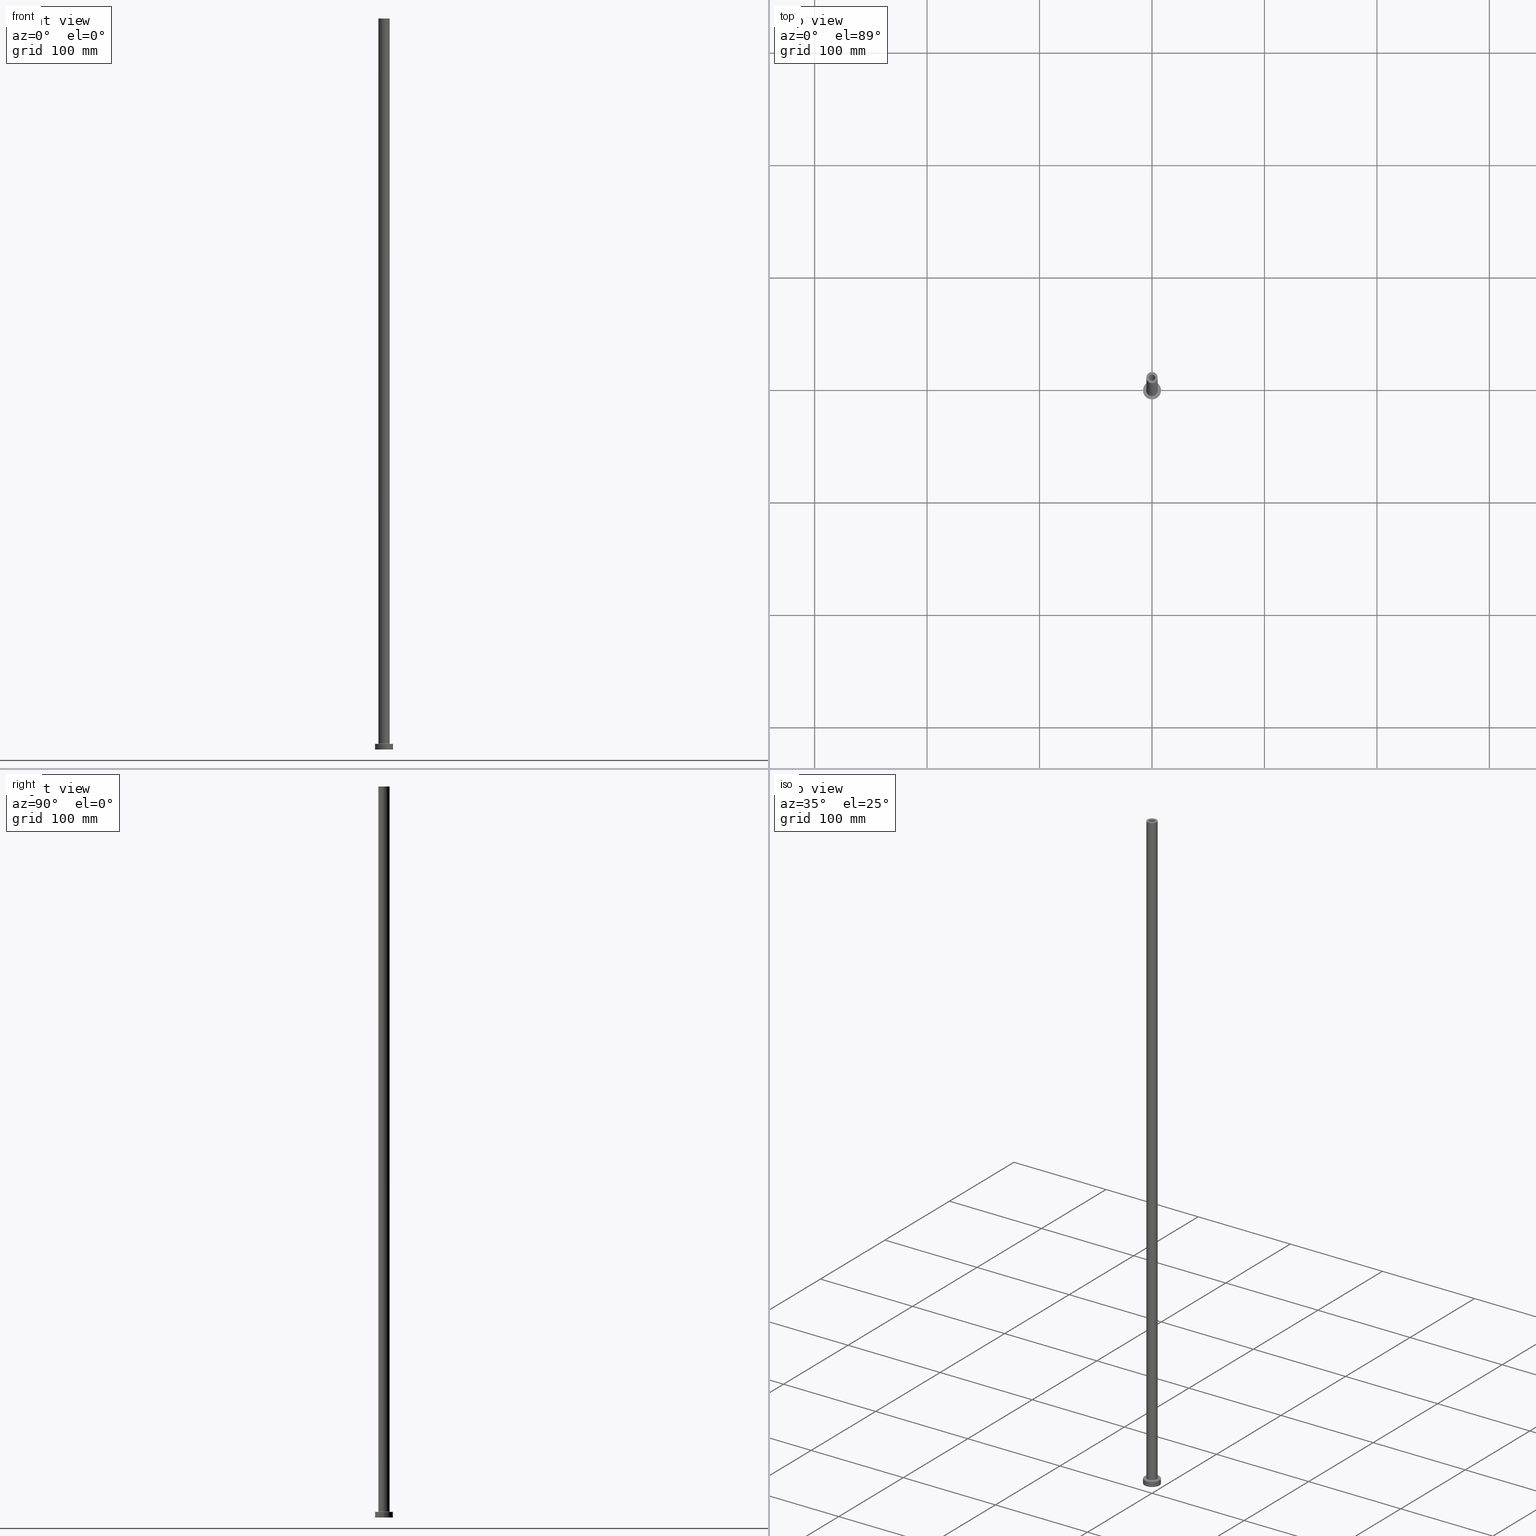
[diagram: canonical four-view strip — front | top / right | iso, engineering-drawing reading convention]
A machine part, canonical four-view strip (front | top / right | iso — engineering-drawing reading convention). The complete STEP part file that produces these views, byte-faithful:
ISO-10303-21;
HEADER;
FILE_DESCRIPTION (( 'STEP AP203' ),
    '1' );
FILE_NAME ('16ee.STEP',
    '2023-02-13T16:11:40',
    ( '' ),
    ( '' ),
    'SwSTEP 2.0',
    'SolidWorks 2019',
    '' );
FILE_SCHEMA (( 'CONFIG_CONTROL_DESIGN' ));
ENDSEC;

DATA;
#1 = ORIENTED_EDGE ( 'NONE', *, *, #10, .T. ) ;
#2 = DIRECTION ( 'NONE',  ( 1.000000000000000000, 0.000000000000000000, 0.000000000000000000 ) ) ;
#3 = CARTESIAN_POINT ( 'NONE',  ( 8.000000000000000000, 9.797174393178825657E-16, 5.000000000000000000 ) ) ;
#4 = CIRCLE ( 'NONE', #262, 5.000000000000000000 ) ;
#5 = DIRECTION ( 'NONE',  ( -1.000000000000000000, 0.000000000000000000, 0.000000000000000000 ) ) ;
#6 = ORIENTED_EDGE ( 'NONE', *, *, #381, .T. ) ;
#7 = APPLICATION_CONTEXT ( 'configuration controlled 3d designs of mechanical parts and assemblies' ) ;
#8 = DIRECTION ( 'NONE',  ( 1.000000000000000000, 0.000000000000000000, 0.000000000000000000 ) ) ;
#9 = EDGE_LOOP ( 'NONE', ( #135, #1 ) ) ;
#10 = EDGE_CURVE ( 'NONE', #80, #288, #125, .T. ) ;
#11 = DIRECTION ( 'NONE',  ( 1.000000000000000000, 0.000000000000000000, 0.000000000000000000 ) ) ;
#12 = AXIS2_PLACEMENT_3D ( 'NONE', #263, #14, #199 ) ;
#13 = AXIS2_PLACEMENT_3D ( 'NONE', #435, #360, #32 ) ;
#14 = DIRECTION ( 'NONE',  ( 0.000000000000000000, 0.000000000000000000, 1.000000000000000000 ) ) ;
#15 = PERSON_AND_ORGANIZATION ( #161, #175 ) ;
#16 = CARTESIAN_POINT ( 'NONE',  ( 0.000000000000000000, 0.000000000000000000, 605.0000000000000000 ) ) ;
#17 = CALENDAR_DATE ( 2023, 13, 2 ) ;
#18 = VERTEX_POINT ( 'NONE', #123 ) ;
#19 = PERSON_AND_ORGANIZATION_ROLE ( 'creator' ) ;
#20 = DIRECTION ( 'NONE',  ( -1.000000000000000000, 0.000000000000000000, 0.000000000000000000 ) ) ;
#21 = PERSON_AND_ORGANIZATION ( #161, #175 ) ;
#22 =( GEOMETRIC_REPRESENTATION_CONTEXT ( 3 ) GLOBAL_UNCERTAINTY_ASSIGNED_CONTEXT ( ( #397 ) ) GLOBAL_UNIT_ASSIGNED_CONTEXT ( ( #410, #96, #298 ) ) REPRESENTATION_CONTEXT ( 'NONE', 'WORKASPACE' ) );
#23 = CYLINDRICAL_SURFACE ( 'NONE', #339, 2.899999999999999911 ) ;
#24 = ORIENTED_EDGE ( 'NONE', *, *, #46, .T. ) ;
#25 = CARTESIAN_POINT ( 'NONE',  ( 0.000000000000000000, 0.000000000000000000, 0.000000000000000000 ) ) ;
#26 = ADVANCED_FACE ( 'NONE', ( #402, #85 ), #413, .T. ) ;
#27 = DIRECTION ( 'NONE',  ( 0.000000000000000000, 0.000000000000000000, 1.000000000000000000 ) ) ;
#28 = CARTESIAN_POINT ( 'NONE',  ( 8.000000000000000000, 9.797174393178825657E-16, 0.000000000000000000 ) ) ;
#29 = CARTESIAN_POINT ( 'NONE',  ( 0.000000000000000000, 0.000000000000000000, 5.000000000000000000 ) ) ;
#30 = DIRECTION ( 'NONE',  ( 0.000000000000000000, 0.000000000000000000, 1.000000000000000000 ) ) ;
#31 = PRODUCT ( '16ee', '16ee', '', ( #401 ) ) ;
#32 = DIRECTION ( 'NONE',  ( -1.000000000000000000, 0.000000000000000000, 0.000000000000000000 ) ) ;
#33 = AXIS2_PLACEMENT_3D ( 'NONE', #183, #324, #207 ) ;
#34 = EDGE_CURVE ( 'NONE', #416, #182, #97, .T. ) ;
#35 = DIRECTION ( 'NONE',  ( 0.000000000000000000, 0.000000000000000000, 1.000000000000000000 ) ) ;
#36 = COORDINATED_UNIVERSAL_TIME_OFFSET ( 1, 0, .AHEAD. ) ;
#37 = APPROVAL ( #382, 'NEUR�EN�' ) ;
#38 = ORIENTED_EDGE ( 'NONE', *, *, #337, .F. ) ;
#39 = ORIENTED_EDGE ( 'NONE', *, *, #428, .T. ) ;
#40 = CIRCLE ( 'NONE', #64, 2.899999999999999911 ) ;
#41 = CYLINDRICAL_SURFACE ( 'NONE', #13, 5.000000000000000000 ) ;
#42 = ORIENTED_EDGE ( 'NONE', *, *, #381, .F. ) ;
#43 = ADVANCED_FACE ( 'NONE', ( #297 ), #259, .F. ) ;
#44 = DIRECTION ( 'NONE',  ( 1.000000000000000000, 0.000000000000000000, 0.000000000000000000 ) ) ;
#45 = CARTESIAN_POINT ( 'NONE',  ( -2.750000000000000000, 0.000000000000000000, 650.0000000000000000 ) ) ;
#46 = EDGE_CURVE ( 'NONE', #227, #354, #157, .T. ) ;
#47 = AXIS2_PLACEMENT_3D ( 'NONE', #95, #154, #124 ) ;
#48 = DIRECTION ( 'NONE',  ( 0.000000000000000000, 0.000000000000000000, 1.000000000000000000 ) ) ;
#49 = COORDINATED_UNIVERSAL_TIME_OFFSET ( 1, 0, .AHEAD. ) ;
#50 = DIRECTION ( 'NONE',  ( 1.000000000000000000, 0.000000000000000000, 0.000000000000000000 ) ) ;
#51 = DIRECTION ( 'NONE',  ( 1.000000000000000000, 0.000000000000000000, 0.000000000000000000 ) ) ;
#52 = CARTESIAN_POINT ( 'NONE',  ( 2.899999999999999911, 3.551475717527323832E-16, 0.000000000000000000 ) ) ;
#53 = ORIENTED_EDGE ( 'NONE', *, *, #237, .T. ) ;
#54 = AXIS2_PLACEMENT_3D ( 'NONE', #113, #261, #333 ) ;
#55 = EDGE_CURVE ( 'NONE', #283, #18, #180, .T. ) ;
#56 = COORDINATED_UNIVERSAL_TIME_OFFSET ( 1, 0, .AHEAD. ) ;
#57 = DATE_TIME_ROLE ( 'classification_date' ) ;
#58 = DIRECTION ( 'NONE',  ( -1.000000000000000000, 0.000000000000000000, 0.000000000000000000 ) ) ;
#59 = VECTOR ( 'NONE', #338, 1000.000000000000000 ) ;
#60 = CARTESIAN_POINT ( 'NONE',  ( 0.000000000000000000, 0.000000000000000000, 605.0000000000000000 ) ) ;
#61 = EDGE_LOOP ( 'NONE', ( #309, #380, #39, #179 ) ) ;
#62 = CARTESIAN_POINT ( 'NONE',  ( -5.000000000000000000, 0.000000000000000000, 650.0000000000000000 ) ) ;
#63 = ORIENTED_EDGE ( 'NONE', *, *, #304, .T. ) ;
#64 = AXIS2_PLACEMENT_3D ( 'NONE', #250, #70, #44 ) ;
#65 = EDGE_LOOP ( 'NONE', ( #234, #385 ) ) ;
#66 = ADVANCED_FACE ( 'NONE', ( #127 ), #302, .F. ) ;
#67 = FACE_BOUND ( 'NONE', #358, .T. ) ;
#68 = CIRCLE ( 'NONE', #117, 5.000000000000000000 ) ;
#69 = APPROVAL_PERSON_ORGANIZATION ( #192, #442, #264 ) ;
#70 = DIRECTION ( 'NONE',  ( -0.000000000000000000, -0.000000000000000000, -1.000000000000000000 ) ) ;
#71 = ORIENTED_EDGE ( 'NONE', *, *, #396, .F. ) ;
#72 = DIRECTION ( 'NONE',  ( 1.000000000000000000, 0.000000000000000000, 0.000000000000000000 ) ) ;
#73 = DIRECTION ( 'NONE',  ( 0.000000000000000000, 0.000000000000000000, -1.000000000000000000 ) ) ;
#74 = VERTEX_POINT ( 'NONE', #158 ) ;
#75 = FACE_BOUND ( 'NONE', #114, .T. ) ;
#76 = DIRECTION ( 'NONE',  ( 0.000000000000000000, 0.000000000000000000, 1.000000000000000000 ) ) ;
#77 = AXIS2_PLACEMENT_3D ( 'NONE', #440, #92, #434 ) ;
#78 = AXIS2_PLACEMENT_3D ( 'NONE', #289, #404, #11 ) ;
#79 = CARTESIAN_POINT ( 'NONE',  ( 0.000000000000000000, 0.000000000000000000, 5.000000000000000000 ) ) ;
#80 = VERTEX_POINT ( 'NONE', #235 ) ;
#81 = APPROVAL_ROLE ( '' ) ;
#82 = ADVANCED_FACE ( 'NONE', ( #203 ), #343, .T. ) ;
#83 = DIRECTION ( 'NONE',  ( 1.000000000000000000, 0.000000000000000000, -0.000000000000000000 ) ) ;
#84 = APPROVAL_DATE_TIME ( #190, #306 ) ;
#85 = FACE_OUTER_BOUND ( 'NONE', #9, .T. ) ;
#86 = ORIENTED_EDGE ( 'NONE', *, *, #367, .T. ) ;
#87 = CIRCLE ( 'NONE', #303, 2.899999999999999911 ) ;
#88 = APPROVAL_STATUS ( 'not_yet_approved' ) ;
#89 = CARTESIAN_POINT ( 'NONE',  ( 2.750000000000000000, 3.367778697655221012E-16, 650.0000000000000000 ) ) ;
#90 = LINE ( 'NONE', #152, #59 ) ;
#91 = CARTESIAN_POINT ( 'NONE',  ( -2.750000000000000000, 0.000000000000000000, 650.0000000000000000 ) ) ;
#92 = DIRECTION ( 'NONE',  ( 0.000000000000000000, 0.000000000000000000, 1.000000000000000000 ) ) ;
#93 = CARTESIAN_POINT ( 'NONE',  ( 0.000000000000000000, 0.000000000000000000, 5.499999999999949374 ) ) ;
#94 = SECURITY_CLASSIFICATION_LEVEL ( 'unclassified' ) ;
#95 = CARTESIAN_POINT ( 'NONE',  ( 0.000000000000000000, 0.000000000000000000, 650.0000000000000000 ) ) ;
#96 =( NAMED_UNIT ( * ) PLANE_ANGLE_UNIT ( ) SI_UNIT ( $, .RADIAN. ) );
#97 = CIRCLE ( 'NONE', #394, 8.000000000000000000 ) ;
#98 = APPROVAL_DATE_TIME ( #268, #37 ) ;
#99 = VECTOR ( 'NONE', #454, 1000.000000000000000 ) ;
#100 = DIRECTION ( 'NONE',  ( 0.000000000000000000, 0.000000000000000000, -1.000000000000000000 ) ) ;
#101 = CC_DESIGN_PERSON_AND_ORGANIZATION_ASSIGNMENT ( #399, #301, ( #270 ) ) ;
#102 = EDGE_LOOP ( 'NONE', ( #38, #86, #318, #390 ) ) ;
#103 = AXIS2_PLACEMENT_3D ( 'NONE', #441, #155, #294 ) ;
#104 = VERTEX_POINT ( 'NONE', #139 ) ;
#105 = EDGE_CURVE ( 'NONE', #211, #389, #220, .T. ) ;
#106 = CARTESIAN_POINT ( 'NONE',  ( 5.000000000000000000, 6.123233995736765296E-16, 5.499999999999949374 ) ) ;
#107 = ORIENTED_EDGE ( 'NONE', *, *, #254, .F. ) ;
#108 = CARTESIAN_POINT ( 'NONE',  ( 5.000000000000000000, 6.123233995736765296E-16, 650.0000000000000000 ) ) ;
#109 = CC_DESIGN_PERSON_AND_ORGANIZATION_ASSIGNMENT ( #197, #19, ( #270 ) ) ;
#110 = CYLINDRICAL_SURFACE ( 'NONE', #193, 2.750000000000000000 ) ;
#111 = CIRCLE ( 'NONE', #332, 8.000000000000000000 ) ;
#112 = ORIENTED_EDGE ( 'NONE', *, *, #237, .F. ) ;
#113 = CARTESIAN_POINT ( 'NONE',  ( 0.000000000000000000, 0.000000000000000000, 5.000000000000000000 ) ) ;
#114 = EDGE_LOOP ( 'NONE', ( #455, #239 ) ) ;
#115 = CC_DESIGN_DATE_AND_TIME_ASSIGNMENT ( #200, #57, ( #319 ) ) ;
#116 = DIRECTION ( 'NONE',  ( 1.000000000000000000, 0.000000000000000000, 0.000000000000000000 ) ) ;
#117 = AXIS2_PLACEMENT_3D ( 'NONE', #282, #48, #178 ) ;
#118 = LOCAL_TIME ( 17, 11, 40.00000000000000000, #49 ) ;
#119 = ORIENTED_EDGE ( 'NONE', *, *, #337, .T. ) ;
#120 = CALENDAR_DATE ( 2023, 13, 2 ) ;
#121 = EDGE_CURVE ( 'NONE', #354, #227, #68, .T. ) ;
#122 = MANIFOLD_SOLID_BREP ( 'Odebrat vysunut�m4', #363 ) ;
#123 = CARTESIAN_POINT ( 'NONE',  ( 2.899999999999999911, 3.551475717527323832E-16, 605.0000000000000000 ) ) ;
#124 = DIRECTION ( 'NONE',  ( -1.000000000000000000, 0.000000000000000000, 0.000000000000000000 ) ) ;
#125 = CIRCLE ( 'NONE', #290, 8.000000000000000000 ) ;
#126 = TOROIDAL_SURFACE ( 'NONE', #181, 5.500000000000000000, 0.5000000000000000000 ) ;
#127 = FACE_OUTER_BOUND ( 'NONE', #292, .T. ) ;
#128 = CARTESIAN_POINT ( 'NONE',  ( -5.500000000000000000, 6.735557395310442023E-16, 4.999999999999975131 ) ) ;
#129 = DIRECTION ( 'NONE',  ( 1.000000000000000000, 0.000000000000000000, 0.000000000000000000 ) ) ;
#130 = AXIS2_PLACEMENT_3D ( 'NONE', #212, #353, #426 ) ;
#131 = CIRCLE ( 'NONE', #144, 2.750000000000000000 ) ;
#132 = CARTESIAN_POINT ( 'NONE',  ( 0.000000000000000000, 0.000000000000000000, 5.000000000000000000 ) ) ;
#133 = ADVANCED_FACE ( 'NONE', ( #67, #391 ), #356, .F. ) ;
#134 = FACE_OUTER_BOUND ( 'NONE', #102, .T. ) ;
#135 = ORIENTED_EDGE ( 'NONE', *, *, #228, .T. ) ;
#136 = ADVANCED_FACE ( 'NONE', ( #215 ), #110, .F. ) ;
#137 = CIRCLE ( 'NONE', #103, 2.899999999999999911 ) ;
#138 = DIRECTION ( 'NONE',  ( -0.000000000000000000, -0.000000000000000000, -1.000000000000000000 ) ) ;
#139 = CARTESIAN_POINT ( 'NONE',  ( 5.500000000000000000, 0.000000000000000000, 4.999999999999975131 ) ) ;
#140 = VERTEX_POINT ( 'NONE', #146 ) ;
#141 = ORIENTED_EDGE ( 'NONE', *, *, #121, .F. ) ;
#142 = LINE ( 'NONE', #91, #450 ) ;
#143 = ORIENTED_EDGE ( 'NONE', *, *, #281, .T. ) ;
#144 = AXIS2_PLACEMENT_3D ( 'NONE', #279, #171, #287 ) ;
#145 = DIRECTION ( 'NONE',  ( 0.000000000000000000, -1.000000000000000000, 0.000000000000000000 ) ) ;
#146 = CARTESIAN_POINT ( 'NONE',  ( 5.000000000000000000, 6.123233995736765296E-16, 650.0000000000000000 ) ) ;
#147 = ORIENTED_EDGE ( 'NONE', *, *, #295, .T. ) ;
#148 = CALENDAR_DATE ( 2023, 13, 2 ) ;
#149 = ORIENTED_EDGE ( 'NONE', *, *, #172, .F. ) ;
#150 = APPROVAL_DATE_TIME ( #370, #442 ) ;
#151 = LINE ( 'NONE', #89, #209 ) ;
#152 = CARTESIAN_POINT ( 'NONE',  ( -2.899999999999999911, 0.000000000000000000, 613.2024386617638356 ) ) ;
#153 = EDGE_CURVE ( 'NONE', #456, #104, #312, .T. ) ;
#154 = DIRECTION ( 'NONE',  ( 0.000000000000000000, 0.000000000000000000, -1.000000000000000000 ) ) ;
#155 = DIRECTION ( 'NONE',  ( 0.000000000000000000, 0.000000000000000000, 1.000000000000000000 ) ) ;
#156 = DIRECTION ( 'NONE',  ( 0.000000000000000000, 0.000000000000000000, 1.000000000000000000 ) ) ;
#157 = CIRCLE ( 'NONE', #351, 5.000000000000000000 ) ;
#158 = CARTESIAN_POINT ( 'NONE',  ( -5.000000000000000000, 0.000000000000000000, 650.0000000000000000 ) ) ;
#159 = PERSON_AND_ORGANIZATION ( #161, #175 ) ;
#160 = DIRECTION ( 'NONE',  ( 1.000000000000000000, 0.000000000000000000, -0.000000000000000000 ) ) ;
#161 = PERSON ( 'NEUR�EN�', 'NEUR�EN�', 'NEUR�EN�', ('NEUR�EN�'), ('NEUR�EN�'), ('NEUR�EN�') ) ;
#162 = PLANE ( 'NONE',  #405 ) ;
#163 = EDGE_LOOP ( 'NONE', ( #257, #296 ) ) ;
#164 = EDGE_CURVE ( 'NONE', #327, #433, #40, .T. ) ;
#165 = DIRECTION ( 'NONE',  ( -0.000000000000000000, -0.000000000000000000, -1.000000000000000000 ) ) ;
#166 = CARTESIAN_POINT ( 'NONE',  ( 0.000000000000000000, 0.000000000000000000, 650.0000000000000000 ) ) ;
#167 = CARTESIAN_POINT ( 'NONE',  ( -8.000000000000000000, 0.000000000000000000, 5.000000000000000000 ) ) ;
#168 = AXIS2_PLACEMENT_3D ( 'NONE', #170, #313, #452 ) ;
#169 = LINE ( 'NONE', #310, #371 ) ;
#170 = CARTESIAN_POINT ( 'NONE',  ( -5.500000000000000000, 6.735557395310442023E-16, 5.499999999999949374 ) ) ;
#171 = DIRECTION ( 'NONE',  ( 0.000000000000000000, 0.000000000000000000, 1.000000000000000000 ) ) ;
#172 = EDGE_CURVE ( 'NONE', #389, #329, #142, .T. ) ;
#173 = DIRECTION ( 'NONE',  ( -0.000000000000000000, -0.000000000000000000, -1.000000000000000000 ) ) ;
#174 = ORIENTED_EDGE ( 'NONE', *, *, #273, .T. ) ;
#175 = ORGANIZATION ( 'NEUR�EN�', 'NEUR�EN�', '' ) ;
#176 = ORIENTED_EDGE ( 'NONE', *, *, #281, .F. ) ;
#177 = ORIENTED_EDGE ( 'NONE', *, *, #153, .F. ) ;
#178 = DIRECTION ( 'NONE',  ( 1.000000000000000000, 0.000000000000000000, 0.000000000000000000 ) ) ;
#179 = ORIENTED_EDGE ( 'NONE', *, *, #304, .F. ) ;
#180 = CIRCLE ( 'NONE', #417, 2.899999999999999911 ) ;
#181 = AXIS2_PLACEMENT_3D ( 'NONE', #425, #76, #50 ) ;
#182 = VERTEX_POINT ( 'NONE', #376 ) ;
#183 = CARTESIAN_POINT ( 'NONE',  ( 0.000000000000000000, 0.000000000000000000, 605.0000000000000000 ) ) ;
#184 = LINE ( 'NONE', #325, #231 ) ;
#185 = DESIGN_CONTEXT ( 'detailed design', #7, 'design' ) ;
#186 = DIRECTION ( 'NONE',  ( 0.000000000000000000, 0.000000000000000000, 1.000000000000000000 ) ) ;
#187 = ADVANCED_FACE ( 'NONE', ( #374 ), #448, .T. ) ;
#188 = ORIENTED_EDGE ( 'NONE', *, *, #34, .T. ) ;
#189 = ORIENTED_EDGE ( 'NONE', *, *, #428, .F. ) ;
#190 = DATE_AND_TIME ( #17, #118 ) ;
#191 = EDGE_LOOP ( 'NONE', ( #451, #362, #71, #149 ) ) ;
#192 = PERSON_AND_ORGANIZATION ( #161, #175 ) ;
#193 = AXIS2_PLACEMENT_3D ( 'NONE', #322, #73, #5 ) ;
#194 = CC_DESIGN_APPROVAL ( #37, ( #319 ) ) ;
#195 = CYLINDRICAL_SURFACE ( 'NONE', #352, 8.000000000000000000 ) ;
#196 = DIRECTION ( 'NONE',  ( 0.000000000000000000, 0.000000000000000000, 1.000000000000000000 ) ) ;
#197 = PERSON_AND_ORGANIZATION ( #161, #175 ) ;
#198 = CC_DESIGN_PERSON_AND_ORGANIZATION_ASSIGNMENT ( #226, #233, ( #319 ) ) ;
#199 = DIRECTION ( 'NONE',  ( 1.000000000000000000, 0.000000000000000000, 0.000000000000000000 ) ) ;
#200 = DATE_AND_TIME ( #375, #202 ) ;
#201 = ORIENTED_EDGE ( 'NONE', *, *, #105, .T. ) ;
#202 = LOCAL_TIME ( 17, 11, 40.00000000000000000, #368 ) ;
#203 = FACE_OUTER_BOUND ( 'NONE', #423, .T. ) ;
#204 = DIRECTION ( 'NONE',  ( 1.000000000000000000, 0.000000000000000000, 0.000000000000000000 ) ) ;
#205 = EDGE_LOOP ( 'NONE', ( #430, #53 ) ) ;
#206 = ADVANCED_FACE ( 'NONE', ( #236 ), #446, .F. ) ;
#207 = DIRECTION ( 'NONE',  ( 1.000000000000000000, 0.000000000000000000, 0.000000000000000000 ) ) ;
#208 = EDGE_LOOP ( 'NONE', ( #176, #141, #409, #177 ) ) ;
#209 = VECTOR ( 'NONE', #100, 1000.000000000000000 ) ;
#210 = EDGE_CURVE ( 'NONE', #211, #300, #151, .T. ) ;
#211 = VERTEX_POINT ( 'NONE', #307 ) ;
#212 = CARTESIAN_POINT ( 'NONE',  ( 0.000000000000000000, 0.000000000000000000, 0.000000000000000000 ) ) ;
#213 = ORIENTED_EDGE ( 'NONE', *, *, #373, .F. ) ;
#214 = CIRCLE ( 'NONE', #445, 5.500000000000000000 ) ;
#215 = FACE_OUTER_BOUND ( 'NONE', #191, .T. ) ;
#216 = ADVANCED_FACE ( 'NONE', ( #449 ), #195, .T. ) ;
#217 = LINE ( 'NONE', #3, #244 ) ;
#218 = ORIENTED_EDGE ( 'NONE', *, *, #461, .T. ) ;
#219 = PLANE ( 'NONE',  #344 ) ;
#220 = CIRCLE ( 'NONE', #256, 2.750000000000000000 ) ;
#221 = CIRCLE ( 'NONE', #33, 2.750000000000000000 ) ;
#222 = DIRECTION ( 'NONE',  ( 0.000000000000000000, 0.000000000000000000, -1.000000000000000000 ) ) ;
#223 = ADVANCED_FACE ( 'NONE', ( #411 ), #23, .F. ) ;
#224 = ORIENTED_EDGE ( 'NONE', *, *, #419, .F. ) ;
#225 = ORIENTED_EDGE ( 'NONE', *, *, #46, .F. ) ;
#226 = PERSON_AND_ORGANIZATION ( #161, #175 ) ;
#227 = VERTEX_POINT ( 'NONE', #314 ) ;
#228 = EDGE_CURVE ( 'NONE', #288, #80, #111, .T. ) ;
#229 = DIRECTION ( 'NONE',  ( 0.000000000000000000, 0.000000000000000000, 1.000000000000000000 ) ) ;
#230 = DATE_AND_TIME ( #148, #238 ) ;
#231 = VECTOR ( 'NONE', #138, 1000.000000000000000 ) ;
#232 = CC_DESIGN_DATE_AND_TIME_ASSIGNMENT ( #230, #336, ( #260 ) ) ;
#233 = PERSON_AND_ORGANIZATION_ROLE ( 'classification_officer' ) ;
#234 = ORIENTED_EDGE ( 'NONE', *, *, #403, .T. ) ;
#235 = CARTESIAN_POINT ( 'NONE',  ( 8.000000000000000000, 9.797174393178825657E-16, 5.000000000000000000 ) ) ;
#236 = FACE_OUTER_BOUND ( 'NONE', #61, .T. ) ;
#237 = EDGE_CURVE ( 'NONE', #300, #329, #131, .T. ) ;
#238 = LOCAL_TIME ( 17, 11, 40.00000000000000000, #56 ) ;
#239 = ORIENTED_EDGE ( 'NONE', *, *, #105, .F. ) ;
#240 = DIRECTION ( 'NONE',  ( -1.000000000000000000, 0.000000000000000000, 0.000000000000000000 ) ) ;
#241 = CARTESIAN_POINT ( 'NONE',  ( 0.000000000000000000, 0.000000000000000000, 650.0000000000000000 ) ) ;
#242 = ORIENTED_EDGE ( 'NONE', *, *, #367, .F. ) ;
#243 = CALENDAR_DATE ( 2023, 13, 2 ) ;
#244 = VECTOR ( 'NONE', #253, 1000.000000000000000 ) ;
#245 = DIRECTION ( 'NONE',  ( 0.000000000000000000, 0.000000000000000000, 1.000000000000000000 ) ) ;
#246 = LINE ( 'NONE', #108, #364 ) ;
#247 = DIRECTION ( 'NONE',  ( 1.000000000000000000, 0.000000000000000000, 0.000000000000000000 ) ) ;
#248 = CARTESIAN_POINT ( 'NONE',  ( 0.000000000000000000, 0.000000000000000000, 650.0000000000000000 ) ) ;
#249 = DIRECTION ( 'NONE',  ( -0.000000000000000000, -0.000000000000000000, -1.000000000000000000 ) ) ;
#250 = CARTESIAN_POINT ( 'NONE',  ( 0.000000000000000000, 0.000000000000000000, 0.000000000000000000 ) ) ;
#251 = AXIS2_PLACEMENT_3D ( 'NONE', #361, #432, #429 ) ;
#252 = ORIENTED_EDGE ( 'NONE', *, *, #164, .F. ) ;
#253 = DIRECTION ( 'NONE',  ( -0.000000000000000000, -0.000000000000000000, -1.000000000000000000 ) ) ;
#254 = EDGE_CURVE ( 'NONE', #18, #433, #169, .T. ) ;
#255 = CARTESIAN_POINT ( 'NONE',  ( 5.500000000000000000, 0.000000000000000000, 5.499999999999949374 ) ) ;
#256 = AXIS2_PLACEMENT_3D ( 'NONE', #248, #186, #8 ) ;
#257 = ORIENTED_EDGE ( 'NONE', *, *, #55, .F. ) ;
#258 = PERSON_AND_ORGANIZATION_ROLE ( 'design_owner' ) ;
#259 = CYLINDRICAL_SURFACE ( 'NONE', #47, 2.750000000000000000 ) ;
#260 = PRODUCT_DEFINITION ( 'NEZN�M�', '', #270, #185 ) ;
#261 = DIRECTION ( 'NONE',  ( -0.000000000000000000, -0.000000000000000000, -1.000000000000000000 ) ) ;
#262 = AXIS2_PLACEMENT_3D ( 'NONE', #241, #30, #129 ) ;
#263 = CARTESIAN_POINT ( 'NONE',  ( 0.000000000000000000, 0.000000000000000000, 5.499999999999949374 ) ) ;
#264 = APPROVAL_ROLE ( '' ) ;
#265 = CARTESIAN_POINT ( 'NONE',  ( 0.000000000000000000, 0.000000000000000000, 0.000000000000000000 ) ) ;
#266 = ADVANCED_FACE ( 'NONE', ( #75, #315 ), #219, .T. ) ;
#267 = FACE_OUTER_BOUND ( 'NONE', #163, .T. ) ;
#268 = DATE_AND_TIME ( #243, #431 ) ;
#269 = AXIS2_PLACEMENT_3D ( 'NONE', #293, #173, #274 ) ;
#270 = PRODUCT_DEFINITION_FORMATION_WITH_SPECIFIED_SOURCE ( 'LIBOVOLN�', '', #31, .NOT_KNOWN. ) ;
#271 = CC_DESIGN_APPROVAL ( #442, ( #270 ) ) ;
#272 = PRODUCT_RELATED_PRODUCT_CATEGORY ( 'detail', '', ( #31 ) ) ;
#273 = EDGE_CURVE ( 'NONE', #182, #416, #291, .T. ) ;
#274 = DIRECTION ( 'NONE',  ( -1.000000000000000000, 0.000000000000000000, 0.000000000000000000 ) ) ;
#275 = DIRECTION ( 'NONE',  ( 0.000000000000000000, 0.000000000000000000, 1.000000000000000000 ) ) ;
#276 = EDGE_LOOP ( 'NONE', ( #107, #218, #63, #377 ) ) ;
#277 = PRODUCT_DEFINITION_SHAPE ( 'NONE', 'NONE',  #260 ) ;
#278 = CARTESIAN_POINT ( 'NONE',  ( 0.000000000000000000, 0.000000000000000000, 650.0000000000000000 ) ) ;
#279 = CARTESIAN_POINT ( 'NONE',  ( 0.000000000000000000, 0.000000000000000000, 605.0000000000000000 ) ) ;
#280 = EDGE_LOOP ( 'NONE', ( #427, #119 ) ) ;
#281 = EDGE_CURVE ( 'NONE', #227, #456, #384, .T. ) ;
#282 = CARTESIAN_POINT ( 'NONE',  ( 0.000000000000000000, 0.000000000000000000, 5.499999999999949374 ) ) ;
#283 = VERTEX_POINT ( 'NONE', #347 ) ;
#284 = CC_DESIGN_PERSON_AND_ORGANIZATION_ASSIGNMENT ( #15, #328, ( #260 ) ) ;
#285 = AXIS2_PLACEMENT_3D ( 'NONE', #278, #35, #72 ) ;
#286 = ADVANCED_FACE ( 'NONE', ( #134 ), #41, .T. ) ;
#287 = DIRECTION ( 'NONE',  ( 1.000000000000000000, 0.000000000000000000, 0.000000000000000000 ) ) ;
#288 = VERTEX_POINT ( 'NONE', #167 ) ;
#289 = CARTESIAN_POINT ( 'NONE',  ( 0.000000000000000000, 0.000000000000000000, 0.000000000000000000 ) ) ;
#290 = AXIS2_PLACEMENT_3D ( 'NONE', #79, #334, #439 ) ;
#291 = CIRCLE ( 'NONE', #77, 8.000000000000000000 ) ;
#292 = EDGE_LOOP ( 'NONE', ( #225, #143, #348, #213 ) ) ;
#293 = CARTESIAN_POINT ( 'NONE',  ( 0.000000000000000000, 0.000000000000000000, 650.0000000000000000 ) ) ;
#294 = DIRECTION ( 'NONE',  ( 1.000000000000000000, 0.000000000000000000, 0.000000000000000000 ) ) ;
#295 = EDGE_CURVE ( 'NONE', #74, #227, #311, .T. ) ;
#296 = ORIENTED_EDGE ( 'NONE', *, *, #461, .F. ) ;
#297 = FACE_OUTER_BOUND ( 'NONE', #392, .T. ) ;
#298 =( NAMED_UNIT ( * ) SI_UNIT ( $, .STERADIAN. ) SOLID_ANGLE_UNIT ( ) );
#299 = FACE_BOUND ( 'NONE', #205, .T. ) ;
#300 = VERTEX_POINT ( 'NONE', #407 ) ;
#301 = PERSON_AND_ORGANIZATION_ROLE ( 'design_supplier' ) ;
#302 = TOROIDAL_SURFACE ( 'NONE', #12, 5.500000000000000000, 0.5000000000000000000 ) ;
#303 = AXIS2_PLACEMENT_3D ( 'NONE', #25, #321, #247 ) ;
#304 = EDGE_CURVE ( 'NONE', #283, #327, #90, .T. ) ;
#305 = CARTESIAN_POINT ( 'NONE',  ( 0.000000000000000000, 0.000000000000000000, 613.2024386617638356 ) ) ;
#306 = APPROVAL ( #88, 'NEUR�EN�' ) ;
#307 = CARTESIAN_POINT ( 'NONE',  ( 2.750000000000000000, 3.367778697655221012E-16, 650.0000000000000000 ) ) ;
#308 = CARTESIAN_POINT ( 'NONE',  ( -2.899999999999999911, 0.000000000000000000, 0.000000000000000000 ) ) ;
#309 = ORIENTED_EDGE ( 'NONE', *, *, #55, .T. ) ;
#310 = CARTESIAN_POINT ( 'NONE',  ( 2.899999999999999911, 3.551475717527323832E-16, 613.2024386617638356 ) ) ;
#311 = LINE ( 'NONE', #62, #99 ) ;
#312 = CIRCLE ( 'NONE', #251, 5.500000000000000000 ) ;
#313 = DIRECTION ( 'NONE',  ( 1.224646799147353207E-16, 1.000000000000000000, -0.000000000000000000 ) ) ;
#314 = CARTESIAN_POINT ( 'NONE',  ( -5.000000000000000000, 0.000000000000000000, 5.499999999999949374 ) ) ;
#315 = FACE_OUTER_BOUND ( 'NONE', #280, .T. ) ;
#316 = ORIENTED_EDGE ( 'NONE', *, *, #210, .F. ) ;
#317 = CIRCLE ( 'NONE', #285, 5.000000000000000000 ) ;
#318 = ORIENTED_EDGE ( 'NONE', *, *, #121, .T. ) ;
#319 = SECURITY_CLASSIFICATION ( '', '', #94 ) ;
#320 = ADVANCED_FACE ( 'NONE', ( #299, #267 ), #162, .F. ) ;
#321 = DIRECTION ( 'NONE',  ( -0.000000000000000000, -0.000000000000000000, -1.000000000000000000 ) ) ;
#322 = CARTESIAN_POINT ( 'NONE',  ( 0.000000000000000000, 0.000000000000000000, 650.0000000000000000 ) ) ;
#323 = CIRCLE ( 'NONE', #436, 0.5000000000000004441 ) ;
#324 = DIRECTION ( 'NONE',  ( 0.000000000000000000, 0.000000000000000000, 1.000000000000000000 ) ) ;
#325 = CARTESIAN_POINT ( 'NONE',  ( -8.000000000000000000, 0.000000000000000000, 5.000000000000000000 ) ) ;
#326 = EDGE_LOOP ( 'NONE', ( #400, #460, #6, #174 ) ) ;
#327 = VERTEX_POINT ( 'NONE', #308 ) ;
#328 = PERSON_AND_ORGANIZATION_ROLE ( 'creator' ) ;
#329 = VERTEX_POINT ( 'NONE', #418 ) ;
#330 = ORIENTED_EDGE ( 'NONE', *, *, #421, .T. ) ;
#331 = PERSON_AND_ORGANIZATION ( #161, #175 ) ;
#332 = AXIS2_PLACEMENT_3D ( 'NONE', #132, #245, #116 ) ;
#333 = DIRECTION ( 'NONE',  ( -1.000000000000000000, 0.000000000000000000, 0.000000000000000000 ) ) ;
#334 = DIRECTION ( 'NONE',  ( 0.000000000000000000, 0.000000000000000000, 1.000000000000000000 ) ) ;
#335 = DIRECTION ( 'NONE',  ( 1.000000000000000000, 0.000000000000000000, 0.000000000000000000 ) ) ;
#336 = DATE_TIME_ROLE ( 'creation_date' ) ;
#337 = EDGE_CURVE ( 'NONE', #140, #74, #4, .T. ) ;
#338 = DIRECTION ( 'NONE',  ( 0.000000000000000000, 0.000000000000000000, -1.000000000000000000 ) ) ;
#339 = AXIS2_PLACEMENT_3D ( 'NONE', #378, #424, #240 ) ;
#340 = AXIS2_PLACEMENT_3D ( 'NONE', #305, #406, #58 ) ;
#341 = LOCAL_TIME ( 17, 11, 40.00000000000000000, #437 ) ;
#342 = CARTESIAN_POINT ( 'NONE',  ( 0.000000000000000000, 0.000000000000000000, 5.000000000000000000 ) ) ;
#343 = CYLINDRICAL_SURFACE ( 'NONE', #269, 5.000000000000000000 ) ;
#344 = AXIS2_PLACEMENT_3D ( 'NONE', #453, #275, #83 ) ;
#345 = CC_DESIGN_SECURITY_CLASSIFICATION ( #319, ( #270 ) ) ;
#346 = DIRECTION ( 'NONE',  ( 0.000000000000000000, 0.000000000000000000, 1.000000000000000000 ) ) ;
#347 = CARTESIAN_POINT ( 'NONE',  ( -2.899999999999999911, 0.000000000000000000, 605.0000000000000000 ) ) ;
#348 = ORIENTED_EDGE ( 'NONE', *, *, #403, .F. ) ;
#349 = SHAPE_DEFINITION_REPRESENTATION ( #277, #357 ) ;
#350 = EDGE_CURVE ( 'NONE', #389, #211, #395, .T. ) ;
#351 = AXIS2_PLACEMENT_3D ( 'NONE', #93, #229, #51 ) ;
#352 = AXIS2_PLACEMENT_3D ( 'NONE', #438, #372, #20 ) ;
#353 = DIRECTION ( 'NONE',  ( 0.000000000000000000, 0.000000000000000000, 1.000000000000000000 ) ) ;
#354 = VERTEX_POINT ( 'NONE', #106 ) ;
#355 = FACE_OUTER_BOUND ( 'NONE', #208, .T. ) ;
#356 = PLANE ( 'NONE',  #130 ) ;
#357 = ADVANCED_BREP_SHAPE_REPRESENTATION ( '16ee', ( #122, #78 ), #22 ) ;
#358 = EDGE_LOOP ( 'NONE', ( #252, #189 ) ) ;
#359 = APPLICATION_CONTEXT ( 'configuration controlled 3d designs of mechanical parts and assemblies' ) ;
#360 = DIRECTION ( 'NONE',  ( -0.000000000000000000, -0.000000000000000000, -1.000000000000000000 ) ) ;
#361 = CARTESIAN_POINT ( 'NONE',  ( 0.000000000000000000, 0.000000000000000000, 5.000000000000000000 ) ) ;
#362 = ORIENTED_EDGE ( 'NONE', *, *, #210, .T. ) ;
#363 = CLOSED_SHELL ( 'NONE', ( #136, #206, #66, #286, #216, #187, #26, #133, #82, #266, #386, #223, #320, #43 ) ) ;
#364 = VECTOR ( 'NONE', #249, 1000.000000000000000 ) ;
#365 = EDGE_LOOP ( 'NONE', ( #422, #457 ) ) ;
#366 = APPLICATION_PROTOCOL_DEFINITION ( 'international standard', 'config_control_design', 1994, #7 ) ;
#367 = EDGE_CURVE ( 'NONE', #140, #354, #246, .T. ) ;
#368 = COORDINATED_UNIVERSAL_TIME_OFFSET ( 1, 0, .AHEAD. ) ;
#369 = ORIENTED_EDGE ( 'NONE', *, *, #10, .F. ) ;
#370 = DATE_AND_TIME ( #120, #341 ) ;
#371 = VECTOR ( 'NONE', #393, 1000.000000000000000 ) ;
#372 = DIRECTION ( 'NONE',  ( -0.000000000000000000, -0.000000000000000000, -1.000000000000000000 ) ) ;
#373 = EDGE_CURVE ( 'NONE', #354, #104, #323, .T. ) ;
#374 = FACE_OUTER_BOUND ( 'NONE', #326, .T. ) ;
#375 = CALENDAR_DATE ( 2023, 13, 2 ) ;
#376 = CARTESIAN_POINT ( 'NONE',  ( -8.000000000000000000, 0.000000000000000000, 0.000000000000000000 ) ) ;
#377 = ORIENTED_EDGE ( 'NONE', *, *, #164, .T. ) ;
#378 = CARTESIAN_POINT ( 'NONE',  ( 0.000000000000000000, 0.000000000000000000, 613.2024386617638356 ) ) ;
#379 = CC_DESIGN_APPROVAL ( #306, ( #260 ) ) ;
#380 = ORIENTED_EDGE ( 'NONE', *, *, #254, .T. ) ;
#381 = EDGE_CURVE ( 'NONE', #288, #182, #184, .T. ) ;
#382 = APPROVAL_STATUS ( 'not_yet_approved' ) ;
#383 = AXIS2_PLACEMENT_3D ( 'NONE', #342, #346, #160 ) ;
#384 = CIRCLE ( 'NONE', #168, 0.5000000000000004441 ) ;
#385 = ORIENTED_EDGE ( 'NONE', *, *, #153, .T. ) ;
#386 = ADVANCED_FACE ( 'NONE', ( #355 ), #126, .F. ) ;
#387 = CC_DESIGN_PERSON_AND_ORGANIZATION_ASSIGNMENT ( #21, #258, ( #31 ) ) ;
#388 = AXIS2_PLACEMENT_3D ( 'NONE', #166, #459, #2 ) ;
#389 = VERTEX_POINT ( 'NONE', #45 ) ;
#390 = ORIENTED_EDGE ( 'NONE', *, *, #295, .F. ) ;
#391 = FACE_OUTER_BOUND ( 'NONE', #365, .T. ) ;
#392 = EDGE_LOOP ( 'NONE', ( #316, #201, #398, #112 ) ) ;
#393 = DIRECTION ( 'NONE',  ( 0.000000000000000000, 0.000000000000000000, -1.000000000000000000 ) ) ;
#394 = AXIS2_PLACEMENT_3D ( 'NONE', #265, #27, #414 ) ;
#395 = CIRCLE ( 'NONE', #388, 2.750000000000000000 ) ;
#396 = EDGE_CURVE ( 'NONE', #329, #300, #221, .T. ) ;
#397 = UNCERTAINTY_MEASURE_WITH_UNIT (LENGTH_MEASURE( 1.000000000000000082E-05 ), #410, 'distance_accuracy_value', 'NONE');
#398 = ORIENTED_EDGE ( 'NONE', *, *, #172, .T. ) ;
#399 = PERSON_AND_ORGANIZATION ( #161, #175 ) ;
#400 = ORIENTED_EDGE ( 'NONE', *, *, #421, .F. ) ;
#401 = MECHANICAL_CONTEXT ( 'NONE', #359, 'mechanical' ) ;
#402 = FACE_BOUND ( 'NONE', #65, .T. ) ;
#403 = EDGE_CURVE ( 'NONE', #104, #456, #214, .T. ) ;
#404 = DIRECTION ( 'NONE',  ( 0.000000000000000000, 0.000000000000000000, 1.000000000000000000 ) ) ;
#405 = AXIS2_PLACEMENT_3D ( 'NONE', #60, #156, #447 ) ;
#406 = DIRECTION ( 'NONE',  ( 0.000000000000000000, 0.000000000000000000, -1.000000000000000000 ) ) ;
#407 = CARTESIAN_POINT ( 'NONE',  ( 2.750000000000000000, 3.367778697655221012E-16, 605.0000000000000000 ) ) ;
#408 = APPROVAL_PERSON_ORGANIZATION ( #159, #37, #420 ) ;
#409 = ORIENTED_EDGE ( 'NONE', *, *, #373, .T. ) ;
#410 =( LENGTH_UNIT ( ) NAMED_UNIT ( * ) SI_UNIT ( .MILLI., .METRE. ) );
#411 = FACE_OUTER_BOUND ( 'NONE', #276, .T. ) ;
#412 = DIRECTION ( 'NONE',  ( 0.000000000000000000, 0.000000000000000000, -1.000000000000000000 ) ) ;
#413 = PLANE ( 'NONE',  #383 ) ;
#414 = DIRECTION ( 'NONE',  ( 1.000000000000000000, 0.000000000000000000, 0.000000000000000000 ) ) ;
#415 = APPLICATION_PROTOCOL_DEFINITION ( 'international standard', 'config_control_design', 1994, #359 ) ;
#416 = VERTEX_POINT ( 'NONE', #28 ) ;
#417 = AXIS2_PLACEMENT_3D ( 'NONE', #16, #196, #335 ) ;
#418 = CARTESIAN_POINT ( 'NONE',  ( -2.750000000000000000, 0.000000000000000000, 605.0000000000000000 ) ) ;
#419 = EDGE_CURVE ( 'NONE', #74, #140, #317, .T. ) ;
#420 = APPROVAL_ROLE ( '' ) ;
#421 = EDGE_CURVE ( 'NONE', #80, #416, #217, .T. ) ;
#422 = ORIENTED_EDGE ( 'NONE', *, *, #273, .F. ) ;
#423 = EDGE_LOOP ( 'NONE', ( #242, #224, #147, #24 ) ) ;
#424 = DIRECTION ( 'NONE',  ( 0.000000000000000000, 0.000000000000000000, -1.000000000000000000 ) ) ;
#425 = CARTESIAN_POINT ( 'NONE',  ( 0.000000000000000000, 0.000000000000000000, 5.499999999999949374 ) ) ;
#426 = DIRECTION ( 'NONE',  ( 1.000000000000000000, 0.000000000000000000, -0.000000000000000000 ) ) ;
#427 = ORIENTED_EDGE ( 'NONE', *, *, #419, .T. ) ;
#428 = EDGE_CURVE ( 'NONE', #433, #327, #87, .T. ) ;
#429 = DIRECTION ( 'NONE',  ( 1.000000000000000000, 0.000000000000000000, 0.000000000000000000 ) ) ;
#430 = ORIENTED_EDGE ( 'NONE', *, *, #396, .T. ) ;
#431 = LOCAL_TIME ( 17, 11, 40.00000000000000000, #36 ) ;
#432 = DIRECTION ( 'NONE',  ( -0.000000000000000000, -0.000000000000000000, -1.000000000000000000 ) ) ;
#433 = VERTEX_POINT ( 'NONE', #52 ) ;
#434 = DIRECTION ( 'NONE',  ( 1.000000000000000000, 0.000000000000000000, 0.000000000000000000 ) ) ;
#435 = CARTESIAN_POINT ( 'NONE',  ( 0.000000000000000000, 0.000000000000000000, 650.0000000000000000 ) ) ;
#436 = AXIS2_PLACEMENT_3D ( 'NONE', #255, #145, #222 ) ;
#437 = COORDINATED_UNIVERSAL_TIME_OFFSET ( 1, 0, .AHEAD. ) ;
#438 = CARTESIAN_POINT ( 'NONE',  ( 0.000000000000000000, 0.000000000000000000, 5.000000000000000000 ) ) ;
#439 = DIRECTION ( 'NONE',  ( 1.000000000000000000, 0.000000000000000000, 0.000000000000000000 ) ) ;
#440 = CARTESIAN_POINT ( 'NONE',  ( 0.000000000000000000, 0.000000000000000000, 0.000000000000000000 ) ) ;
#441 = CARTESIAN_POINT ( 'NONE',  ( 0.000000000000000000, 0.000000000000000000, 605.0000000000000000 ) ) ;
#442 = APPROVAL ( #444, 'NEUR�EN�' ) ;
#443 = EDGE_LOOP ( 'NONE', ( #369, #330, #188, #42 ) ) ;
#444 = APPROVAL_STATUS ( 'not_yet_approved' ) ;
#445 = AXIS2_PLACEMENT_3D ( 'NONE', #29, #165, #204 ) ;
#446 = CYLINDRICAL_SURFACE ( 'NONE', #340, 2.899999999999999911 ) ;
#447 = DIRECTION ( 'NONE',  ( 1.000000000000000000, 0.000000000000000000, -0.000000000000000000 ) ) ;
#448 = CYLINDRICAL_SURFACE ( 'NONE', #54, 8.000000000000000000 ) ;
#449 = FACE_OUTER_BOUND ( 'NONE', #443, .T. ) ;
#450 = VECTOR ( 'NONE', #412, 1000.000000000000000 ) ;
#451 = ORIENTED_EDGE ( 'NONE', *, *, #350, .T. ) ;
#452 = DIRECTION ( 'NONE',  ( -1.000000000000000000, 1.224646799147351482E-16, 0.000000000000000000 ) ) ;
#453 = CARTESIAN_POINT ( 'NONE',  ( 0.000000000000000000, 0.000000000000000000, 650.0000000000000000 ) ) ;
#454 = DIRECTION ( 'NONE',  ( -0.000000000000000000, -0.000000000000000000, -1.000000000000000000 ) ) ;
#455 = ORIENTED_EDGE ( 'NONE', *, *, #350, .F. ) ;
#456 = VERTEX_POINT ( 'NONE', #128 ) ;
#457 = ORIENTED_EDGE ( 'NONE', *, *, #34, .F. ) ;
#458 = APPROVAL_PERSON_ORGANIZATION ( #331, #306, #81 ) ;
#459 = DIRECTION ( 'NONE',  ( 0.000000000000000000, 0.000000000000000000, 1.000000000000000000 ) ) ;
#460 = ORIENTED_EDGE ( 'NONE', *, *, #228, .F. ) ;
#461 = EDGE_CURVE ( 'NONE', #18, #283, #137, .T. ) ;
ENDSEC;
END-ISO-10303-21;
